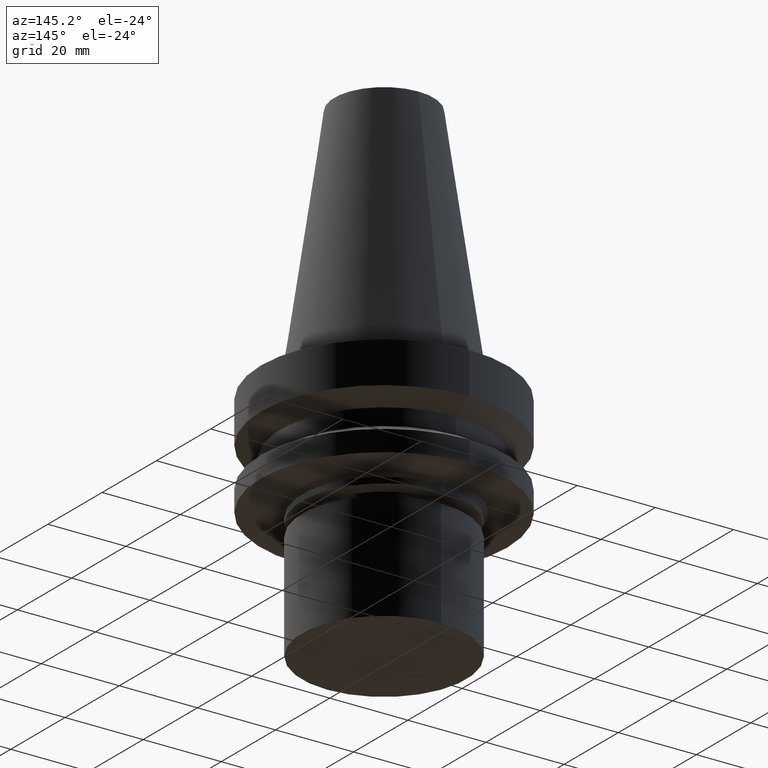
[diagram: clean part render]
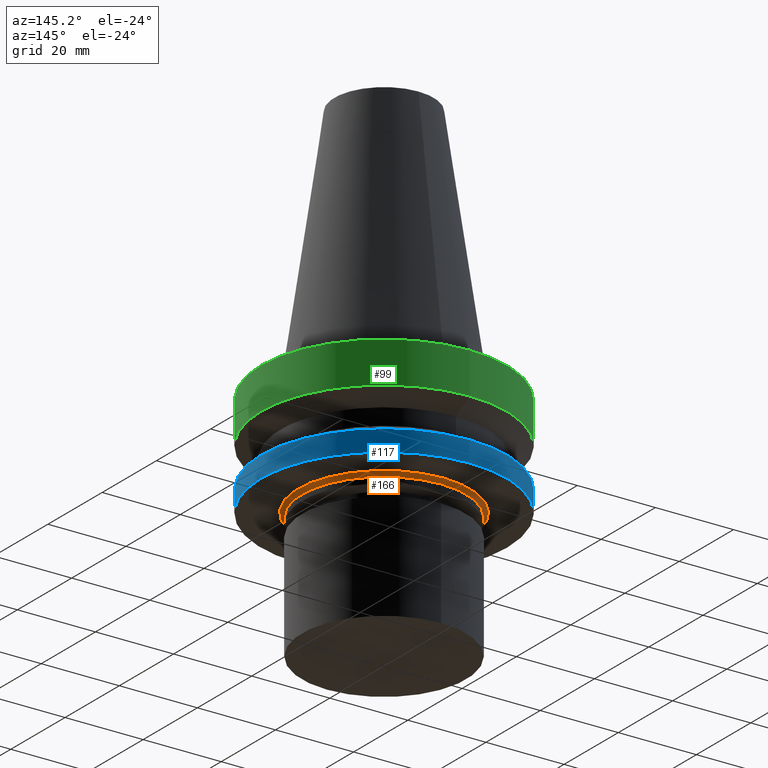
[diagram: same view with three faces highlighted in distinct colors, each labeled with its STEP entity id]
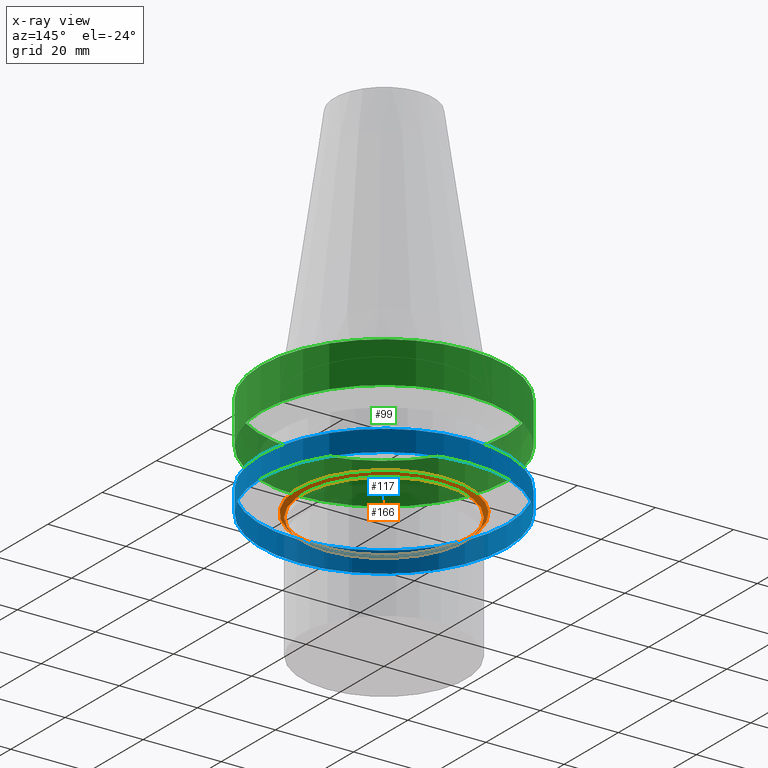
[diagram: x-ray of the same camera — body ghosted, the three highlighted faces saturated]
A machine part, auxiliary view with three faces highlighted in distinct colors.
The next image is the same camera in x-ray (body ghosted, the three faces saturated) — at least one of them is partly hidden behind the body in this view.
Their STEP definitions:

[orange] entity #166 — the highlighted conical surface has half-angle 45 deg.
#139=EDGE_CURVE('Unnamed[1]',#299,#299,#300,.T.);
#166=ADVANCED_FACE('Unnamed[1]',(#341,#342),#343,.T.);
#174=EDGE_CURVE('Unnamed[1]',#354,#354,#355,.T.);
#299=VERTEX_POINT('',#499);
#300=CIRCLE('',#500,22.0000000000001);
#341=FACE_BOUND('',#552,.T.);
#342=FACE_BOUND('',#553,.T.);
#343=CONICAL_SURFACE('',#554,21.5000000000001,0.785398163397357);
#354=VERTEX_POINT('',#568);
#355=CIRCLE('',#569,21.0000000000001);
#499=CARTESIAN_POINT('',(1.65327317884891E-015,22.0000000000001,-26.9999999999998));
#500=AXIS2_PLACEMENT_3D('',#689,#690,#691);
#552=EDGE_LOOP('',(#735));
#553=EDGE_LOOP('',(#736));
#554=AXIS2_PLACEMENT_3D('',#737,#738,#739);
#568=CARTESIAN_POINT('',(1.71450551880629E-015,21.0000000000002,-28.0));
#569=AXIS2_PLACEMENT_3D('',#751,#752,#753);
#689=CARTESIAN_POINT('',(1.65327317884891E-015,2.70376128182853E-014,-26.9999999999998));
#690=DIRECTION('',(6.12323399573677E-017,-5.36731610657134E-016,-1.0));
#691=DIRECTION('',(2.80381797188541E-032,1.0,-5.36731610657134E-016));
#735=ORIENTED_EDGE('',*,*,#174,.F.);
#736=ORIENTED_EDGE('',*,*,#139,.T.);
#737=CARTESIAN_POINT('',(1.6838893488276E-015,2.67692470129566E-014,-27.4999999999999));
#738=DIRECTION('',(-6.12323399573677E-017,5.36731610657134E-016,1.0));
#739=DIRECTION('',(2.80381797188541E-032,1.0,-5.36731610657134E-016));
#751=CARTESIAN_POINT('',(1.71450551880629E-015,2.6500881207628E-014,-28.0));
#752=DIRECTION('',(6.12323399573677E-017,-5.36731610657134E-016,-1.0));
#753=DIRECTION('',(2.80381797188541E-032,1.0,-5.36731610657134E-016));

[blue] entity #117 — the highlighted cylindrical surface (bore or boss wall) has radius 31.5 mm, axis along (0, -0, -1).
#107=EDGE_CURVE('Unnamed[1]',#248,#248,#249,.T.);
#117=ADVANCED_FACE('Unnamed[1]',(#263,#264),#265,.T.);
#163=EDGE_CURVE('Unnamed[1]',#337,#337,#338,.T.);
#248=VERTEX_POINT('',#436);
#249=CIRCLE('',#437,31.5000000000007);
#263=FACE_BOUND('',#455,.T.);
#264=FACE_BOUND('',#456,.T.);
#265=CYLINDRICAL_SURFACE('',#457,31.5000000000005);
#337=VERTEX_POINT('',#547);
#338=CIRCLE('',#548,31.5000000000004);
#436=CARTESIAN_POINT('',(1.32473071268174E-015,31.5000000000007,-21.6344943473346));
#437=AXIS2_PLACEMENT_3D('',#630,#631,#632);
#455=EDGE_LOOP('',(#646));
#456=EDGE_LOOP('',(#647));
#457=AXIS2_PLACEMENT_3D('',#648,#649,#650);
#547=CARTESIAN_POINT('',(1.65327317884891E-015,31.5000000000004,-26.9999999999998));
#548=AXIS2_PLACEMENT_3D('',#731,#732,#733);
#630=CARTESIAN_POINT('',(1.32473071268174E-015,2.99174493092302E-014,-21.6344943473346));
#631=DIRECTION('',(6.12323399573677E-017,-5.36731610657134E-016,-1.0));
#632=DIRECTION('',(2.80381797188541E-032,1.0,-5.36731610657134E-016));
#646=ORIENTED_EDGE('',*,*,#163,.F.);
#647=ORIENTED_EDGE('',*,*,#107,.T.);
#648=CARTESIAN_POINT('',(1.48900194576533E-015,2.84775310637577E-014,-24.3172471736672));
#649=DIRECTION('',(6.12323399573677E-017,-5.36731610657134E-016,-1.0));
#650=DIRECTION('',(2.80381797188541E-032,1.0,-5.36731610657134E-016));
#731=CARTESIAN_POINT('',(1.65327317884891E-015,2.70376128182853E-014,-26.9999999999997));
#732=DIRECTION('',(6.12323399573677E-017,-5.36731610657134E-016,-1.0));
#733=DIRECTION('',(2.80381797188541E-032,1.0,-5.36731610657134E-016));

[green] entity #99 — the highlighted cylindrical surface (bore or boss wall) has radius 31.5 mm, axis along (0, -0, -1).
#90=EDGE_CURVE('Unnamed[1]',#222,#222,#223,.T.);
#99=ADVANCED_FACE('Unnamed[1]',(#235,#236),#237,.T.);
#145=EDGE_CURVE('Unnamed[1]',#308,#308,#309,.T.);
#222=VERTEX_POINT('',#403);
#223=CIRCLE('',#404,31.4999999999996);
#235=FACE_BOUND('',#419,.T.);
#236=FACE_BOUND('',#420,.T.);
#237=CYLINDRICAL_SURFACE('',#421,31.5);
#308=VERTEX_POINT('',#511);
#309=CIRCLE('',#512,31.5000000000003);
#403=CARTESIAN_POINT('',(6.12323399573568E-017,31.4999999999997,-0.999999999999825));
#404=AXIS2_PLACEMENT_3D('',#601,#602,#603);
#419=EDGE_LOOP('',(#616));
#420=EDGE_LOOP('',(#617));
#421=AXIS2_PLACEMENT_3D('',#618,#619,#620);
#511=CARTESIAN_POINT('',(7.08182973902924E-016,31.5000000000004,-11.5655056526664));
#512=AXIS2_PLACEMENT_3D('',#698,#699,#700);
#601=CARTESIAN_POINT('',(6.12323399573559E-017,4.09926346953707E-014,-0.999999999999808));
#602=DIRECTION('',(6.12323399573677E-017,-5.36731610657134E-016,-1.0));
#603=DIRECTION('',(2.80381797188541E-032,1.0,-5.36731610657134E-016));
#616=ORIENTED_EDGE('',*,*,#145,.F.);
#617=ORIENTED_EDGE('',*,*,#90,.T.);
#618=CARTESIAN_POINT('',(3.84707656930139E-016,3.81572142621894E-014,-6.28275282633307));
#619=DIRECTION('',(6.12323399573677E-017,-5.36731610657134E-016,-1.0));
#620=DIRECTION('',(2.80381797188541E-032,1.0,-5.36731610657134E-016));
#698=CARTESIAN_POINT('',(7.08182973902923E-016,3.5321793829008E-014,-11.5655056526663));
#699=DIRECTION('',(6.12323399573676E-017,-5.36731610657134E-016,-1.0));
#700=DIRECTION('',(2.80381797188541E-032,1.0,-5.36731610657134E-016));